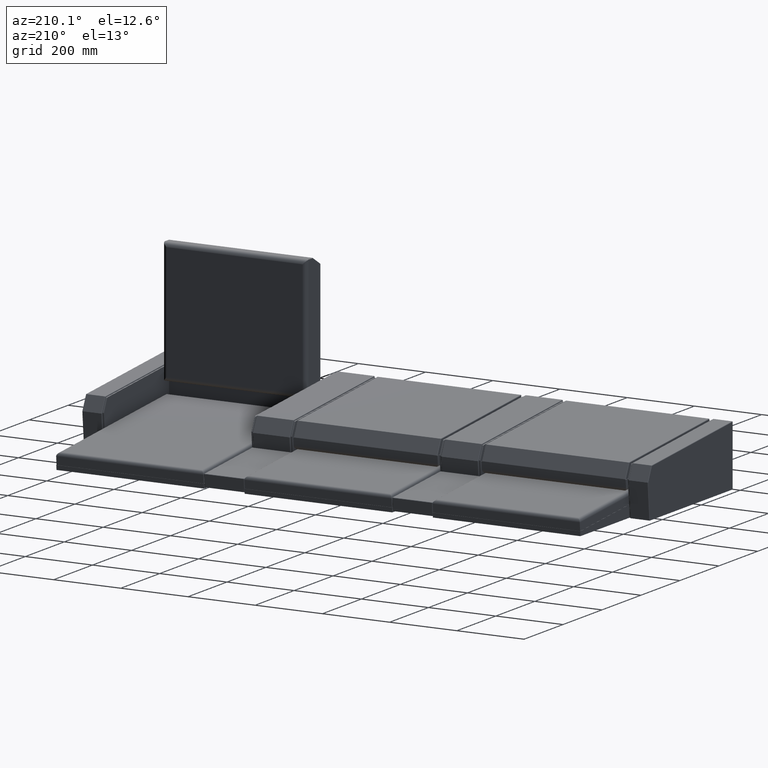
[diagram: clean part render]
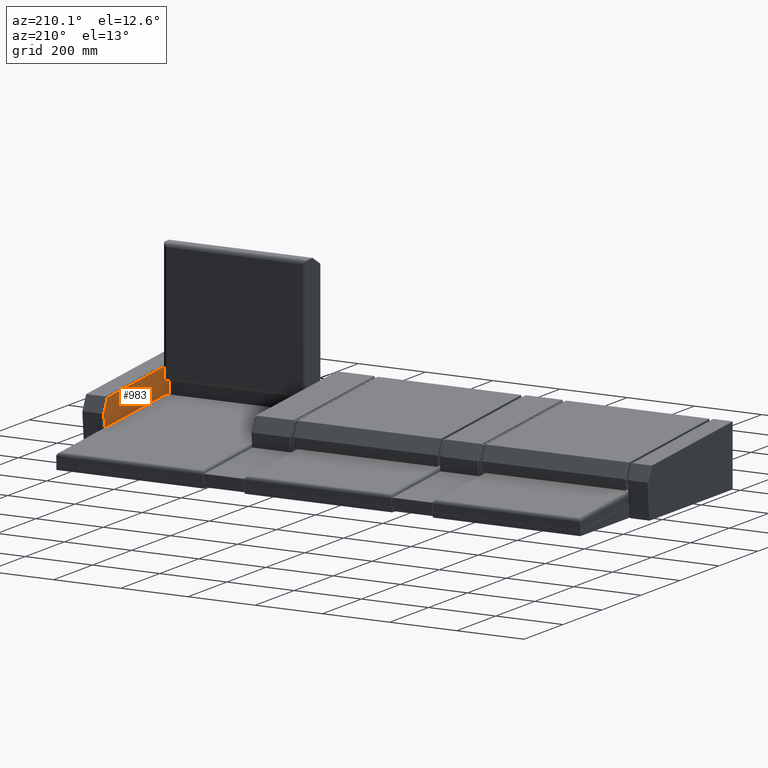
[diagram: same view with one face highlighted and labeled with its STEP entity id]
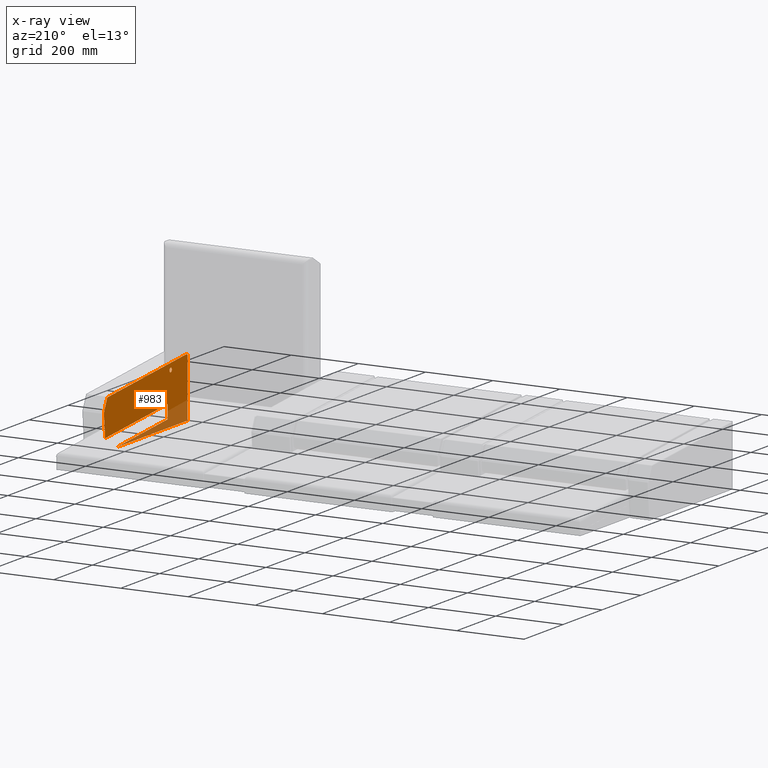
[diagram: x-ray of the same camera — body ghosted, the highlighted face saturated]
A machine part, auxiliary view. The second image highlights one B-rep face of the part: STEP entity #983.
The next image is the same camera in x-ray: the body ghosted, the highlighted face saturated — about 15% of this face is hidden behind the body in this view.
In plain terms, the highlighted planar face has unit normal (-1, 0, 0).
Its self-contained STEP definition (entity closure, byte-faithful):
#15 = EDGE_LOOP ( 'NONE', ( #6357, #6356, #6355, #6354, #6353, #6352, #6351, #6350, #6349, #6348, #6347, #6346 ) ) ;
#16 = EDGE_LOOP ( 'NONE', ( #6345, #6344 ) ) ;
#48 = CARTESIAN_POINT ( 'NONE',  ( 219.5000000000000000, 322.9253744744759700, 39.09214083662942600 ) ) ;
#49 = DIRECTION ( 'NONE',  ( -1.000000000000000000, 1.387778780781445700E-016, 0.0000000000000000000 ) ) ;
#50 = DIRECTION ( 'NONE',  ( 0.0000000000000000000, -1.000000000000000000, 0.0000000000000000000 ) ) ;
#51 = CARTESIAN_POINT ( 'NONE',  ( 219.5000000000000000, -101.9999999999999700, -63.10000000000000100 ) ) ;
#52 = CARTESIAN_POINT ( 'NONE',  ( 219.5000000000000000, 309.4284103118910700, 77.50128022177149500 ) ) ;
#53 = DIRECTION ( 'NONE',  ( -0.0000000000000000000, 1.571693639910133400E-016, -1.000000000000000000 ) ) ;
#55 = CARTESIAN_POINT ( 'NONE',  ( 219.4999999999999400, -97.99999999999998600, 109.1313679722756100 ) ) ;
#56 = DIRECTION ( 'NONE',  ( -1.000000000000000000, 1.387778780781445700E-016, 0.0000000000000000000 ) ) ;
#57 = DIRECTION ( 'NONE',  ( 0.0000000000000000000, -1.000000000000000000, 0.0000000000000000000 ) ) ;
#58 = DIRECTION ( 'NONE',  ( 0.0000000000000000000, -0.9961946980917458800, 0.08715574274765422500 ) ) ;
#60 = CARTESIAN_POINT ( 'NONE',  ( 219.5000000000000000, 306.7791742324662300, 73.71777899555162600 ) ) ;
#61 = DIRECTION ( 'NONE',  ( -1.000000000000000000, 1.387778780781445700E-016, 0.0000000000000000000 ) ) ;
#62 = DIRECTION ( 'NONE',  ( 0.0000000000000000000, -1.000000000000000000, 0.0000000000000000000 ) ) ;
#65 = CARTESIAN_POINT ( 'NONE',  ( 219.4999999999999400, -15.99999999999995900, 86.89999999999999100 ) ) ;
#66 = DIRECTION ( 'NONE',  ( -1.000000000000000000, 1.387778780781445700E-016, 0.0000000000000000000 ) ) ;
#67 = DIRECTION ( 'NONE',  ( 0.0000000000000000000, -1.000000000000000000, 0.0000000000000000000 ) ) ;
#359 = EDGE_CURVE ( 'NONE', #6640, #6689, #7881, .T. ) ;
#362 = EDGE_CURVE ( 'NONE', #6689, #6685, #7893, .T. ) ;
#383 = EDGE_CURVE ( 'NONE', #6708, #6685, #7932, .T. ) ;
#403 = EDGE_CURVE ( 'NONE', #6715, #6717, #7967, .T. ) ;
#404 = EDGE_CURVE ( 'NONE', #6715, #6719, #7963, .T. ) ;
#405 = EDGE_CURVE ( 'NONE', #6608, #6719, #7971, .T. ) ;
#406 = EDGE_CURVE ( 'NONE', #6612, #6708, #7972, .T. ) ;
#407 = EDGE_CURVE ( 'NONE', #6613, #6696, #7969, .T. ) ;
#408 = EDGE_CURVE ( 'NONE', #6716, #6696, #7976, .T. ) ;
#409 = EDGE_CURVE ( 'NONE', #6716, #6717, #7974, .T. ) ;
#410 = EDGE_CURVE ( 'NONE', #6622, #6621, #7978, .T. ) ;
#983 = ADVANCED_FACE ( 'NONE', ( #3506, #3508 ), #3794, .T. ) ;
#1170 = CARTESIAN_POINT ( 'NONE',  ( 219.4999999999999400, -97.99999999999998600, 109.1313679722756100 ) ) ;
#1171 = DIRECTION ( 'NONE',  ( -1.000000000000000000, 1.387778780781445700E-016, 0.0000000000000000000 ) ) ;
#1172 = DIRECTION ( 'NONE',  ( 0.0000000000000000000, -1.000000000000000000, 0.0000000000000000000 ) ) ;
#1192 = CARTESIAN_POINT ( 'NONE',  ( 219.4999999999999400, -15.99999999999995900, 86.89999999999999100 ) ) ;
#1193 = DIRECTION ( 'NONE',  ( -1.000000000000000000, 1.387778780781445700E-016, 0.0000000000000000000 ) ) ;
#1194 = DIRECTION ( 'NONE',  ( 0.0000000000000000000, -1.000000000000000000, 0.0000000000000000000 ) ) ;
#1241 = CARTESIAN_POINT ( 'NONE',  ( 219.5000000000000000, 0.0000000000000000000, 0.0000000000000000000 ) ) ;
#1242 = DIRECTION ( 'NONE',  ( 0.0000000000000000000, -0.9961946980917458800, 0.08715574274765433600 ) ) ;
#1427 = CARTESIAN_POINT ( 'NONE',  ( 219.5000000000000000, 321.0630327343327500, -28.08937564150554400 ) ) ;
#1431 = CARTESIAN_POINT ( 'NONE',  ( 219.5000000000000000, -102.0000000000000000, 109.1313679722755600 ) ) ;
#1432 = CARTESIAN_POINT ( 'NONE',  ( 219.4999999999999400, -97.99999999999998600, 113.1313679722756100 ) ) ;
#1439 = CARTESIAN_POINT ( 'NONE',  ( 219.4999999999999400, -15.99999999999995900, 92.89999999999999100 ) ) ;
#1440 = CARTESIAN_POINT ( 'NONE',  ( 219.4999999999999400, -15.99999999999995900, 80.89999999999999100 ) ) ;
#1458 = CARTESIAN_POINT ( 'NONE',  ( 219.5000000000000000, 0.0000000000000000000, 0.0000000000000000000 ) ) ;
#1503 = CARTESIAN_POINT ( 'NONE',  ( 219.5000000000000000, 262.2877704774455800, -63.10000000000000100 ) ) ;
#1507 = CARTESIAN_POINT ( 'NONE',  ( 219.5000000000000000, 1.630301535245939800E-018, -40.15279350173388200 ) ) ;
#1514 = CARTESIAN_POINT ( 'NONE',  ( 219.5000000000000000, -97.65137702900939600, 113.1161467646425900 ) ) ;
#1526 = CARTESIAN_POINT ( 'NONE',  ( 219.5000000000000000, -101.9999999999999700, -63.10000000000000100 ) ) ;
#1533 = CARTESIAN_POINT ( 'NONE',  ( 219.5000000000000000, 326.5506056226225800, 40.78261388359227600 ) ) ;
#1534 = CARTESIAN_POINT ( 'NONE',  ( 219.5000000000000000, 307.1277972034569100, 77.70255778791860700 ) ) ;
#1535 = CARTESIAN_POINT ( 'NONE',  ( 219.5000000000000000, 310.4044053806128400, 75.40825204251444800 ) ) ;
#1537 = CARTESIAN_POINT ( 'NONE',  ( 219.5000000000000000, 326.9101532668429400, 38.74351786563880800 ) ) ;
#2129 = AXIS2_PLACEMENT_3D ( 'NONE', #48, #49, #50 ) ;
#2130 = AXIS2_PLACEMENT_3D ( 'NONE', #55, #56, #57 ) ;
#2131 = AXIS2_PLACEMENT_3D ( 'NONE', #60, #61, #62 ) ;
#2132 = AXIS2_PLACEMENT_3D ( 'NONE', #65, #66, #67 ) ;
#2199 = AXIS2_PLACEMENT_3D ( 'NONE', #3792, #3789, #3796 ) ;
#2228 = CARTESIAN_POINT ( 'NONE',  ( 219.5000000000000000, 0.0000000000000000000, 0.0000000000000000000 ) ) ;
#2238 = DIRECTION ( 'NONE',  ( 0.0000000000000000000, 4.060244364257096900E-020, -1.000000000000000000 ) ) ;
#2243 = CARTESIAN_POINT ( 'NONE',  ( 219.5000000000000000, 1.630301535245939800E-018, -40.15279350173388200 ) ) ;
#2244 = DIRECTION ( 'NONE',  ( 0.0000000000000000000, 0.9961946980917458800, -0.08715574274765433600 ) ) ;
#2288 = CARTESIAN_POINT ( 'NONE',  ( 219.5000000000000000, 308.0000000000000600, -63.10000000000000100 ) ) ;
#2289 = DIRECTION ( 'NONE',  ( 1.387778780781445700E-016, 1.000000000000000000, -0.0000000000000000000 ) ) ;
#2328 = DIRECTION ( 'NONE',  ( -0.0000000000000000000, 0.08715574274765398900, 0.9961946980917458800 ) ) ;
#2332 = CARTESIAN_POINT ( 'NONE',  ( 219.5000000000000000, 309.4284103118910700, 77.50128022177149500 ) ) ;
#2333 = CARTESIAN_POINT ( 'NONE',  ( 219.5000000000000000, 327.0035665103828300, 39.81123612507028800 ) ) ;
#2334 = DIRECTION ( 'NONE',  ( -0.0000000000000000000, -0.4226182617407071600, 0.9063077870366463800 ) ) ;
#3246 = EDGE_CURVE ( 'NONE', #6612, #6613, #4318, .T. ) ;
#3254 = EDGE_CURVE ( 'NONE', #6621, #6622, #4328, .T. ) ;
#3275 = EDGE_CURVE ( 'NONE', #6608, #6640, #4361, .T. ) ;
#3506 = FACE_OUTER_BOUND ( 'NONE', #15, .T. ) ;
#3508 = FACE_BOUND ( 'NONE', #16, .T. ) ;
#3789 = DIRECTION ( 'NONE',  ( -1.000000000000000000, 1.387778780781445700E-016, 0.0000000000000000000 ) ) ;
#3792 = CARTESIAN_POINT ( 'NONE',  ( 219.5000000000000000, 308.0000000000000600, -59.10000000000000100 ) ) ;
#3794 = PLANE ( 'NONE',  #2199 ) ;
#3796 = DIRECTION ( 'NONE',  ( -1.387778780781445700E-016, -1.000000000000000000, 0.0000000000000000000 ) ) ;
#4318 = CIRCLE ( 'NONE', #4929, 4.000000000000003600 ) ;
#4328 = CIRCLE ( 'NONE', #4931, 6.000000000000001800 ) ;
#4361 = LINE ( 'NONE', #1241, #4364 ) ;
#4364 = VECTOR ( 'NONE', #1242, 1000.000000000000000 ) ;
#4929 = AXIS2_PLACEMENT_3D ( 'NONE', #1170, #1171, #1172 ) ;
#4931 = AXIS2_PLACEMENT_3D ( 'NONE', #1192, #1193, #1194 ) ;
#6344 = ORIENTED_EDGE ( 'NONE', *, *, #3254, .F. ) ;
#6345 = ORIENTED_EDGE ( 'NONE', *, *, #410, .F. ) ;
#6346 = ORIENTED_EDGE ( 'NONE', *, *, #409, .T. ) ;
#6347 = ORIENTED_EDGE ( 'NONE', *, *, #408, .F. ) ;
#6348 = ORIENTED_EDGE ( 'NONE', *, *, #407, .T. ) ;
#6349 = ORIENTED_EDGE ( 'NONE', *, *, #3246, .T. ) ;
#6350 = ORIENTED_EDGE ( 'NONE', *, *, #406, .F. ) ;
#6351 = ORIENTED_EDGE ( 'NONE', *, *, #383, .F. ) ;
#6352 = ORIENTED_EDGE ( 'NONE', *, *, #362, .T. ) ;
#6353 = ORIENTED_EDGE ( 'NONE', *, *, #359, .T. ) ;
#6354 = ORIENTED_EDGE ( 'NONE', *, *, #3275, .T. ) ;
#6355 = ORIENTED_EDGE ( 'NONE', *, *, #405, .F. ) ;
#6356 = ORIENTED_EDGE ( 'NONE', *, *, #404, .T. ) ;
#6357 = ORIENTED_EDGE ( 'NONE', *, *, #403, .F. ) ;
#6608 = VERTEX_POINT ( 'NONE', #1427 ) ;
#6612 = VERTEX_POINT ( 'NONE', #1431 ) ;
#6613 = VERTEX_POINT ( 'NONE', #1432 ) ;
#6621 = VERTEX_POINT ( 'NONE', #1439 ) ;
#6622 = VERTEX_POINT ( 'NONE', #1440 ) ;
#6640 = VERTEX_POINT ( 'NONE', #1458 ) ;
#6685 = VERTEX_POINT ( 'NONE', #1503 ) ;
#6689 = VERTEX_POINT ( 'NONE', #1507 ) ;
#6696 = VERTEX_POINT ( 'NONE', #1514 ) ;
#6708 = VERTEX_POINT ( 'NONE', #1526 ) ;
#6715 = VERTEX_POINT ( 'NONE', #1533 ) ;
#6716 = VERTEX_POINT ( 'NONE', #1534 ) ;
#6717 = VERTEX_POINT ( 'NONE', #1535 ) ;
#6719 = VERTEX_POINT ( 'NONE', #1537 ) ;
#7881 = LINE ( 'NONE', #2228, #7890 ) ;
#7890 = VECTOR ( 'NONE', #2238, 1000.000000000000000 ) ;
#7893 = LINE ( 'NONE', #2243, #7896 ) ;
#7896 = VECTOR ( 'NONE', #2244, 1000.000000000000000 ) ;
#7932 = LINE ( 'NONE', #2288, #7935 ) ;
#7935 = VECTOR ( 'NONE', #2289, 1000.000000000000000 ) ;
#7963 = CIRCLE ( 'NONE', #2129, 4.000000000000003600 ) ;
#7967 = LINE ( 'NONE', #2332, #7970 ) ;
#7969 = CIRCLE ( 'NONE', #2130, 4.000000000000003600 ) ;
#7970 = VECTOR ( 'NONE', #2334, 1000.000000000000000 ) ;
#7971 = LINE ( 'NONE', #2333, #7973 ) ;
#7972 = LINE ( 'NONE', #51, #7975 ) ;
#7973 = VECTOR ( 'NONE', #2328, 1000.000000000000100 ) ;
#7974 = CIRCLE ( 'NONE', #2131, 4.000000000000003600 ) ;
#7975 = VECTOR ( 'NONE', #53, 1000.000000000000000 ) ;
#7976 = LINE ( 'NONE', #52, #7977 ) ;
#7977 = VECTOR ( 'NONE', #58, 1000.000000000000000 ) ;
#7978 = CIRCLE ( 'NONE', #2132, 6.000000000000001800 ) ;